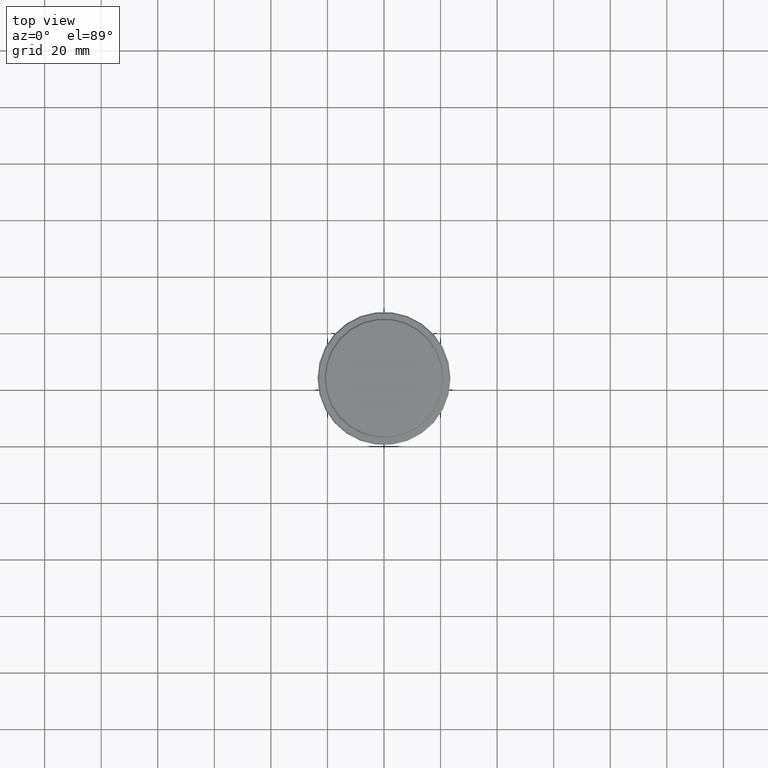
[diagram: clean part render]
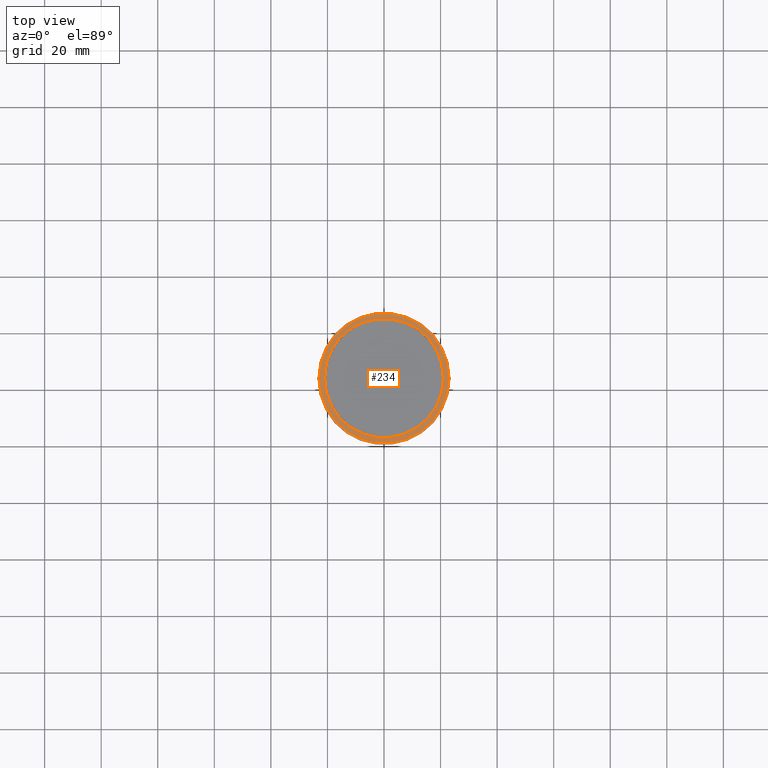
[diagram: same view with one face highlighted and labeled with its STEP entity id]
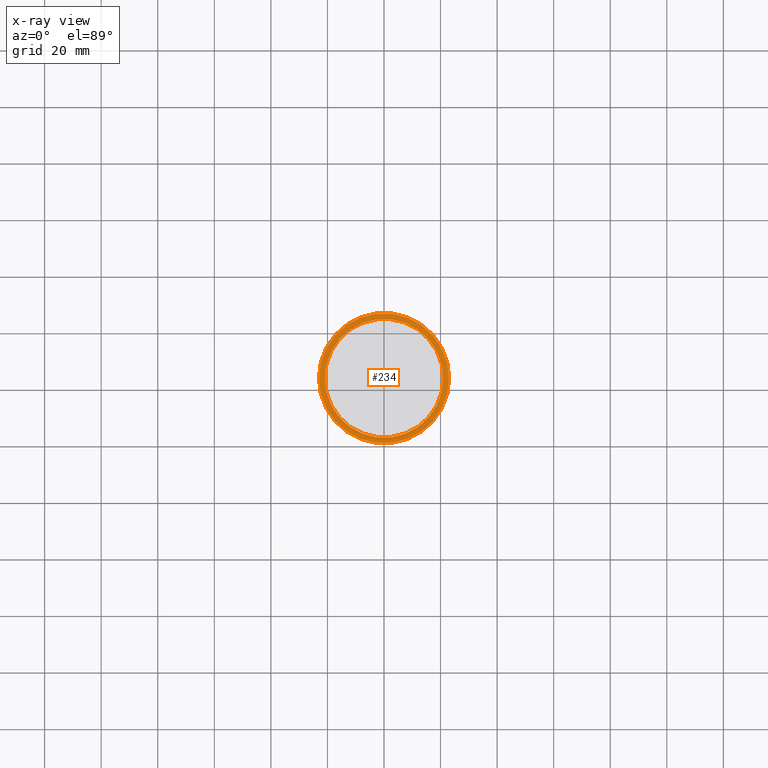
[diagram: x-ray of the same camera — body ghosted, the highlighted face saturated]
A machine part, top view. The second image highlights one B-rep face of the part: STEP entity #234.
The next image is the same camera in x-ray: the body ghosted, the highlighted face saturated — about 0% of this face is hidden behind the body in this view.
In plain terms, the highlighted planar face has unit normal (0, -0, 1).
Its self-contained STEP definition (entity closure, byte-faithful):
#32 = EDGE_LOOP ( 'NONE', ( #634, #659 ) ) ;
#125 = CIRCLE ( 'NONE', #600, 20.99999999999999289 ) ;
#181 = DIRECTION ( 'NONE',  ( -0.000000000000000000, -0.000000000000000000, 1.000000000000000000 ) ) ;
#234 = ADVANCED_FACE ( 'NONE', ( #373, #262 ), #914, .T. ) ;
#252 = CARTESIAN_POINT ( 'NONE',  ( 0.000000000000000000, 0.000000000000000000, -9.000000000000001776 ) ) ;
#262 = FACE_BOUND ( 'NONE', #32, .T. ) ;
#263 = CIRCLE ( 'NONE', #783, 23.00000000000002487 ) ;
#276 = DIRECTION ( 'NONE',  ( 1.000000000000000000, 0.000000000000000000, 0.000000000000000000 ) ) ;
#290 = EDGE_CURVE ( 'NONE', #1210, #603, #417, .T. ) ;
#367 = DIRECTION ( 'NONE',  ( 1.000000000000000000, 0.000000000000000000, 0.000000000000000000 ) ) ;
#373 = FACE_OUTER_BOUND ( 'NONE', #568, .T. ) ;
#374 = CIRCLE ( 'NONE', #489, 23.00000000000002487 ) ;
#409 = DIRECTION ( 'NONE',  ( -0.000000000000000000, -0.000000000000000000, 1.000000000000000000 ) ) ;
#417 = CIRCLE ( 'NONE', #1282, 20.99999999999999289 ) ;
#489 = AXIS2_PLACEMENT_3D ( 'NONE', #829, #409, #850 ) ;
#496 = DIRECTION ( 'NONE',  ( 0.000000000000000000, 0.000000000000000000, -1.000000000000000000 ) ) ;
#507 = DIRECTION ( 'NONE',  ( 1.000000000000000000, 0.000000000000000000, 0.000000000000000000 ) ) ;
#527 = VERTEX_POINT ( 'NONE', #1201 ) ;
#568 = EDGE_LOOP ( 'NONE', ( #1063, #1346 ) ) ;
#600 = AXIS2_PLACEMENT_3D ( 'NONE', #252, #917, #367 ) ;
#603 = VERTEX_POINT ( 'NONE', #1301 ) ;
#634 = ORIENTED_EDGE ( 'NONE', *, *, #1134, .T. ) ;
#659 = ORIENTED_EDGE ( 'NONE', *, *, #290, .T. ) ;
#705 = CARTESIAN_POINT ( 'NONE',  ( 0.000000000000000000, 20.49999999999999645, -9.000000000000001776 ) ) ;
#783 = AXIS2_PLACEMENT_3D ( 'NONE', #1119, #181, #507 ) ;
#794 = EDGE_CURVE ( 'NONE', #527, #902, #263, .T. ) ;
#804 = AXIS2_PLACEMENT_3D ( 'NONE', #705, #1234, #1228 ) ;
#829 = CARTESIAN_POINT ( 'NONE',  ( 0.000000000000000000, 0.000000000000000000, -9.000000000000001776 ) ) ;
#850 = DIRECTION ( 'NONE',  ( 1.000000000000000000, 0.000000000000000000, 0.000000000000000000 ) ) ;
#902 = VERTEX_POINT ( 'NONE', #957 ) ;
#905 = EDGE_CURVE ( 'NONE', #902, #527, #374, .T. ) ;
#914 = PLANE ( 'NONE',  #804 ) ;
#917 = DIRECTION ( 'NONE',  ( 0.000000000000000000, 0.000000000000000000, -1.000000000000000000 ) ) ;
#957 = CARTESIAN_POINT ( 'NONE',  ( 23.00000000000002487, 2.847303808017597717E-15, -9.000000000000001776 ) ) ;
#1063 = ORIENTED_EDGE ( 'NONE', *, *, #794, .T. ) ;
#1119 = CARTESIAN_POINT ( 'NONE',  ( 0.000000000000000000, 0.000000000000000000, -9.000000000000001776 ) ) ;
#1129 = CARTESIAN_POINT ( 'NONE',  ( 0.000000000000000000, 0.000000000000000000, -9.000000000000001776 ) ) ;
#1134 = EDGE_CURVE ( 'NONE', #603, #1210, #125, .T. ) ;
#1201 = CARTESIAN_POINT ( 'NONE',  ( -23.00000000000002487, 0.000000000000000000, -9.000000000000001776 ) ) ;
#1210 = VERTEX_POINT ( 'NONE', #1345 ) ;
#1228 = DIRECTION ( 'NONE',  ( 1.000000000000000000, 0.000000000000000000, 0.000000000000000000 ) ) ;
#1234 = DIRECTION ( 'NONE',  ( 0.000000000000000000, -0.000000000000000000, 1.000000000000000000 ) ) ;
#1282 = AXIS2_PLACEMENT_3D ( 'NONE', #1129, #496, #276 ) ;
#1301 = CARTESIAN_POINT ( 'NONE',  ( 20.99999999999999289, 0.000000000000000000, -9.000000000000001776 ) ) ;
#1345 = CARTESIAN_POINT ( 'NONE',  ( -20.99999999999999289, 2.571758278209440872E-15, -9.000000000000001776 ) ) ;
#1346 = ORIENTED_EDGE ( 'NONE', *, *, #905, .T. ) ;